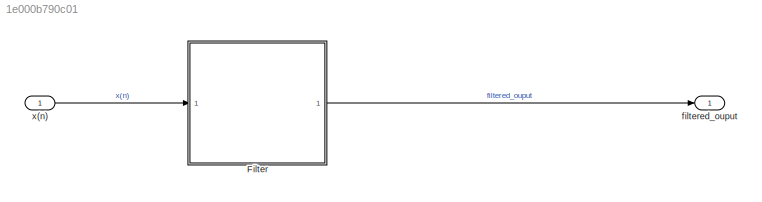
MODEL slx_1e000b790c01
KIND model
CONFIG AbsTol = auto
CONFIG EnableMultiTasking = off
CONFIG FixedStep = auto
CONFIG MaxStep = auto
CONFIG MinStep = auto
CONFIG RelTol = 1e-3
CONFIG SampleTimeConstraint = Unconstrained
CONFIG SolverName = VariableStepAuto
CONFIG StartTime = 0.0
CONFIG StopTime = 10.0
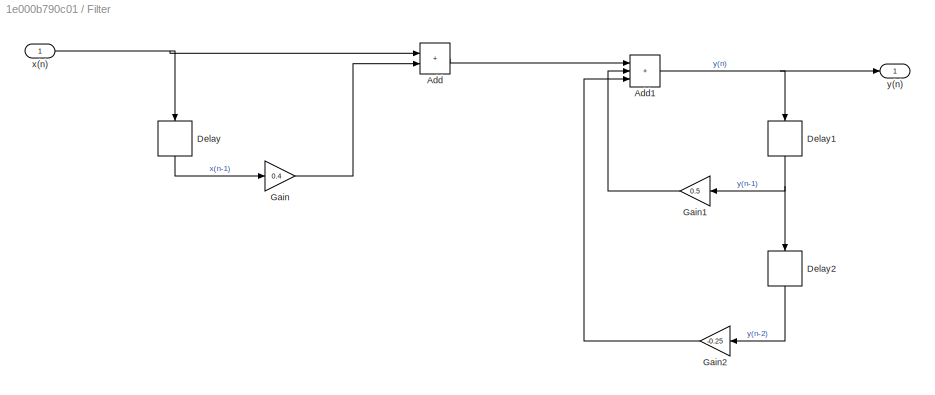
BLOCK [SubSystem] Filter
  Ports = [1, 1]
  RequestExecContextInheritance = off
BLOCK [Sum] Filter/Add
  IconShape = rectangular
  Ports = [2, 1]
BLOCK [Sum] Filter/Add1
  IconShape = rectangular
  Inputs = +++
  Ports = [3, 1]
BLOCK [Delay] Filter/Delay
  DelayLength = 1
  InputPortMap = u0
  NameLocation = left
  Ports = [1, 1]
BLOCK [Delay] Filter/Delay1
  DelayLength = 1
  InputPortMap = u0
  NameLocation = left
  Ports = [1, 1]
BLOCK [Delay] Filter/Delay2
  DelayLength = 1
  InputPortMap = u0
  NameLocation = left
  Ports = [1, 1]
BLOCK [Gain] Filter/Gain
  Gain = 0.4
BLOCK [Gain] Filter/Gain1
  Gain = 0.5
BLOCK [Gain] Filter/Gain2
  Gain = -0.25
BLOCK [Inport] Filter/x(n)
BLOCK [Outport] Filter/y(n)
BLOCK [Outport] filtered_ouput
  OutDataTypeStr = double
  PortDimensions = 1
  SampleTime = [0,1]
  SamplingMode = Sample based
  SignalType = real
BLOCK [Inport] x(n)
  OutDataTypeStr = double
  PortDimensions = 1
  SampleTime = [0,1]
  SamplingMode = Sample based
  SignalType = real
NET Filter/Add1:1 -> Filter/Delay1:1, Filter/y(n):1
LINE Filter/Add:1 -> Filter/Add1:1
NET Filter/Delay1:1 -> Filter/Delay2:1, Filter/Gain1:1
LINE Filter/Delay2:1 -> Filter/Gain2:1
LINE Filter/Delay:1 -> Filter/Gain:1
LINE Filter/Gain1:1 -> Filter/Add1:2
LINE Filter/Gain2:1 -> Filter/Add1:3
LINE Filter/Gain:1 -> Filter/Add:2
NET Filter/x(n):1 -> Filter/Add:1, Filter/Delay:1
LINE Filter:1 -> filtered_ouput:1
LINE x(n):1 -> Filter:1
note: NET lines group one-source signal fan-out (src -> all destinations, sorted); 1:1 wires keep LINE
